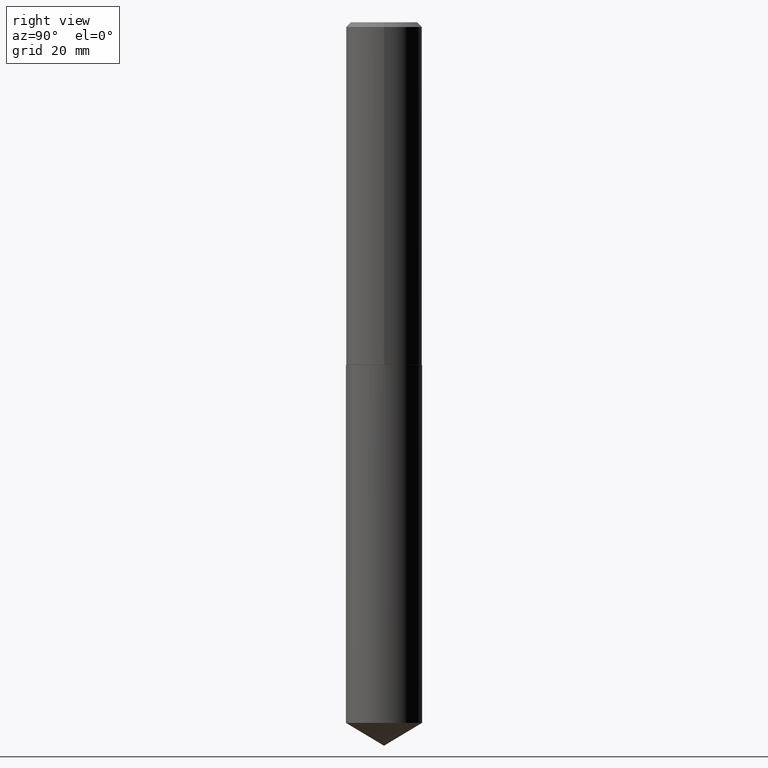
[diagram: clean part render]
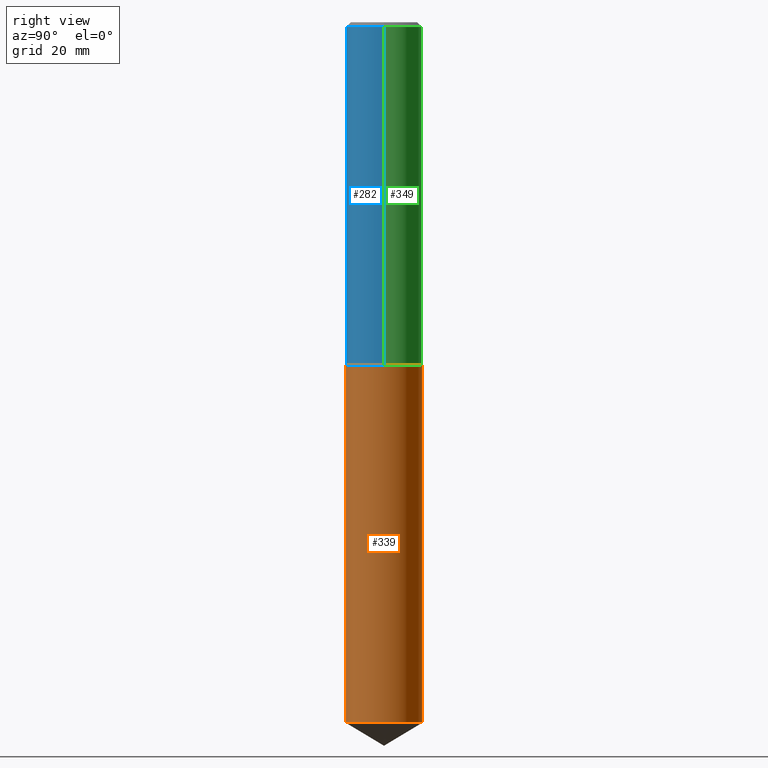
[diagram: same view with three faces highlighted in distinct colors, each labeled with its STEP entity id]
A machine part, right view with three faces highlighted in distinct colors.
Their STEP definitions:

[orange] entity #339 — the highlighted cylindrical surface (partial cylindrical patch) has radius 6.35 mm, axis along (-0, 0, 1).
#9 = ORIENTED_EDGE ( 'NONE', *, *, #237, .F. ) ;
#17 = FACE_OUTER_BOUND ( 'NONE', #108, .T. ) ;
#18 = VERTEX_POINT ( 'NONE', #36 ) ;
#21 = CYLINDRICAL_SURFACE ( 'NONE', #245, 0.2500000000000000000 ) ;
#33 = DIRECTION ( 'NONE',  ( -2.445526819537206284E-29, 3.491398260421066944E-15, 1.000000000000000000 ) ) ;
#36 = CARTESIAN_POINT ( 'NONE',  ( -1.745740669421511457E-15, -0.2500000000000078271, -2.249999999999999112 ) ) ;
#41 = DIRECTION ( 'NONE',  ( -2.445526819537206284E-29, 3.491398260421066944E-15, 1.000000000000000000 ) ) ;
#51 = VERTEX_POINT ( 'NONE', #124 ) ;
#61 = CARTESIAN_POINT ( 'NONE',  ( 5.502304813916556222E-29, -7.855833012397076871E-15, -2.249999999999999556 ) ) ;
#68 = DIRECTION ( 'NONE',  ( -6.982962677686265922E-15, -1.000000000000000000, 3.278217592397115862E-15 ) ) ;
#69 = ORIENTED_EDGE ( 'NONE', *, *, #178, .T. ) ;
#74 = DIRECTION ( 'NONE',  ( -6.982962677686265922E-15, -1.000000000000000000, 4.370956789862821150E-15 ) ) ;
#81 = EDGE_CURVE ( 'NONE', #225, #51, #146, .T. ) ;
#87 = DIRECTION ( 'NONE',  ( -2.445526819537206284E-29, 3.491398260421066944E-15, 1.000000000000000000 ) ) ;
#91 = CARTESIAN_POINT ( 'NONE',  ( 1.776356839400305291E-15, 0.2499999999999921452, -2.250000000000000444 ) ) ;
#92 = CARTESIAN_POINT ( 'NONE',  ( 1.776356839400362877E-15, 0.2499999999999921452, -2.250000000000000444 ) ) ;
#97 = CIRCLE ( 'NONE', #148, 0.2500000000000000000 ) ;
#104 = DIRECTION ( 'NONE',  ( -2.445526819537206284E-29, 3.491398260421066944E-15, 1.000000000000000000 ) ) ;
#108 = EDGE_LOOP ( 'NONE', ( #241, #69, #233, #9 ) ) ;
#120 = LINE ( 'NONE', #160, #199 ) ;
#124 = CARTESIAN_POINT ( 'NONE',  ( 1.776356839400362483E-15, 0.2499999999999839018, -4.599784845243110709 ) ) ;
#146 = CIRCLE ( 'NONE', #257, 0.2500000000000000000 ) ;
#148 = AXIS2_PLACEMENT_3D ( 'NONE', #61, #87, #388 ) ;
#159 = VERTEX_POINT ( 'NONE', #92 ) ;
#160 = CARTESIAN_POINT ( 'NONE',  ( -1.745740669421511457E-15, -0.2500000000000078271, -2.249999999999999112 ) ) ;
#173 = CARTESIAN_POINT ( 'NONE',  ( 5.502304813916556222E-29, -7.855833012397076871E-15, -2.249999999999999556 ) ) ;
#178 = EDGE_CURVE ( 'NONE', #51, #159, #213, .T. ) ;
#186 = VECTOR ( 'NONE', #238, 39.37007874015748143 ) ;
#199 = VECTOR ( 'NONE', #33, 39.37007874015748143 ) ;
#213 = LINE ( 'NONE', #91, #186 ) ;
#225 = VERTEX_POINT ( 'NONE', #267 ) ;
#233 = ORIENTED_EDGE ( 'NONE', *, *, #256, .F. ) ;
#237 = EDGE_CURVE ( 'NONE', #225, #18, #120, .T. ) ;
#238 = DIRECTION ( 'NONE',  ( -2.445526819537206284E-29, 3.491398260421066944E-15, 1.000000000000000000 ) ) ;
#241 = ORIENTED_EDGE ( 'NONE', *, *, #81, .T. ) ;
#245 = AXIS2_PLACEMENT_3D ( 'NONE', #173, #41, #68 ) ;
#256 = EDGE_CURVE ( 'NONE', #18, #159, #97, .T. ) ;
#257 = AXIS2_PLACEMENT_3D ( 'NONE', #294, #104, #74 ) ;
#267 = CARTESIAN_POINT ( 'NONE',  ( -1.745740669421453673E-15, -0.2500000000000159872, -4.599784845243108933 ) ) ;
#294 = CARTESIAN_POINT ( 'NONE',  ( 1.124876667310066739E-28, -1.605986773344265841E-14, -4.599784845243109821 ) ) ;
#339 = ADVANCED_FACE ( 'NONE', ( #17 ), #21, .T. ) ;
#388 = DIRECTION ( 'NONE',  ( -6.982962677686265922E-15, -1.000000000000000000, 3.278217592397115862E-15 ) ) ;

[blue] entity #282 — the highlighted cylindrical surface (partial cylindrical patch) has radius 6.35 mm, axis along (-0, 0, 1).
#4 = LINE ( 'NONE', #264, #312 ) ;
#45 = VERTEX_POINT ( 'NONE', #389 ) ;
#52 = EDGE_CURVE ( 'NONE', #144, #45, #240, .T. ) ;
#59 = DIRECTION ( 'NONE',  ( 1.000000000000000000, -6.982962677686266711E-15, 0.000000000000000000 ) ) ;
#62 = DIRECTION ( 'NONE',  ( -2.445468806185136597E-29, 3.491481338843145583E-15, 1.000000000000000000 ) ) ;
#64 = CYLINDRICAL_SURFACE ( 'NONE', #203, 0.2500000000000001110 ) ;
#77 = EDGE_CURVE ( 'NONE', #144, #82, #216, .T. ) ;
#82 = VERTEX_POINT ( 'NONE', #138 ) ;
#93 = DIRECTION ( 'NONE',  ( -2.445468806185136877E-29, 3.491481338843145188E-15, 1.000000000000000000 ) ) ;
#106 = CARTESIAN_POINT ( 'NONE',  ( 0.2500000000000000000, -1.854849461260415778E-15, -0.03125000000000021511 ) ) ;
#119 = ORIENTED_EDGE ( 'NONE', *, *, #215, .T. ) ;
#138 = CARTESIAN_POINT ( 'NONE',  ( 0.2500000000000002776, -9.599827941149224411E-15, -2.249499999999999833 ) ) ;
#144 = VERTEX_POINT ( 'NONE', #217 ) ;
#151 = CARTESIAN_POINT ( 'NONE',  ( 7.642090019328604414E-31, -1.091087918388490513E-16, -0.03125000000000021511 ) ) ;
#153 = VECTOR ( 'NONE', #93, 39.37007874015748143 ) ;
#154 = EDGE_CURVE ( 'NONE', #45, #318, #244, .T. ) ;
#179 = ORIENTED_EDGE ( 'NONE', *, *, #77, .T. ) ;
#182 = DIRECTION ( 'NONE',  ( 1.000000000000000000, -6.982962677686266711E-15, 0.000000000000000000 ) ) ;
#183 = DIRECTION ( 'NONE',  ( -2.445468806185136597E-29, 3.491481338843145583E-15, 1.000000000000000000 ) ) ;
#185 = CARTESIAN_POINT ( 'NONE',  ( 5.501082079513464541E-29, -7.854087271727656156E-15, -2.249499999999999833 ) ) ;
#193 = AXIS2_PLACEMENT_3D ( 'NONE', #185, #242, #182 ) ;
#194 = ORIENTED_EDGE ( 'NONE', *, *, #52, .F. ) ;
#203 = AXIS2_PLACEMENT_3D ( 'NONE', #350, #183, #362 ) ;
#215 = EDGE_CURVE ( 'NONE', #82, #318, #4, .T. ) ;
#216 = CIRCLE ( 'NONE', #193, 0.2500000000000002776 ) ;
#217 = CARTESIAN_POINT ( 'NONE',  ( -0.2500000000000002776, -6.077730432327403325E-15, -2.249499999999999833 ) ) ;
#240 = LINE ( 'NONE', #357, #153 ) ;
#242 = DIRECTION ( 'NONE',  ( -2.445468806185136597E-29, 3.491481338843145583E-15, 1.000000000000000000 ) ) ;
#244 = CIRCLE ( 'NONE', #262, 0.2500000000000000000 ) ;
#262 = AXIS2_PLACEMENT_3D ( 'NONE', #151, #62, #59 ) ;
#264 = CARTESIAN_POINT ( 'NONE',  ( 0.2500000000000001110, -1.745740669421567664E-15, 1.219044193948984649E-29 ) ) ;
#274 = DIRECTION ( 'NONE',  ( -2.445468806185136877E-29, 3.491481338843145188E-15, 1.000000000000000000 ) ) ;
#282 = ADVANCED_FACE ( 'NONE', ( #328 ), #64, .T. ) ;
#312 = VECTOR ( 'NONE', #274, 39.37007874015748143 ) ;
#318 = VERTEX_POINT ( 'NONE', #106 ) ;
#328 = FACE_OUTER_BOUND ( 'NONE', #377, .T. ) ;
#340 = ORIENTED_EDGE ( 'NONE', *, *, #154, .F. ) ;
#350 = CARTESIAN_POINT ( 'NONE',  ( 0.000000000000000000, 0.000000000000000000, 0.000000000000000000 ) ) ;
#357 = CARTESIAN_POINT ( 'NONE',  ( -0.2500000000000001110, 1.776356839400251254E-15, -1.229733772563727146E-29 ) ) ;
#362 = DIRECTION ( 'NONE',  ( 1.000000000000000000, -6.982962677686267499E-15, 4.876176775795936353E-29 ) ) ;
#377 = EDGE_LOOP ( 'NONE', ( #194, #179, #119, #340 ) ) ;
#389 = CARTESIAN_POINT ( 'NONE',  ( -0.2500000000000000000, -2.205241192383000191E-15, -0.03125000000000021511 ) ) ;

[green] entity #349 — the highlighted cylindrical surface (partial cylindrical patch) has radius 6.35 mm, axis along (-0, 0, 1).
#4 = LINE ( 'NONE', #264, #312 ) ;
#16 = DIRECTION ( 'NONE',  ( -2.445468806185136597E-29, 3.491481338843145583E-15, 1.000000000000000000 ) ) ;
#45 = VERTEX_POINT ( 'NONE', #389 ) ;
#49 = AXIS2_PLACEMENT_3D ( 'NONE', #308, #16, #67 ) ;
#52 = EDGE_CURVE ( 'NONE', #144, #45, #240, .T. ) ;
#67 = DIRECTION ( 'NONE',  ( 1.000000000000000000, -6.982962677686266711E-15, 0.000000000000000000 ) ) ;
#82 = VERTEX_POINT ( 'NONE', #138 ) ;
#93 = DIRECTION ( 'NONE',  ( -2.445468806185136877E-29, 3.491481338843145188E-15, 1.000000000000000000 ) ) ;
#106 = CARTESIAN_POINT ( 'NONE',  ( 0.2500000000000000000, -1.854849461260415778E-15, -0.03125000000000021511 ) ) ;
#112 = DIRECTION ( 'NONE',  ( 1.000000000000000000, -6.982962677686267499E-15, 4.876176775795936353E-29 ) ) ;
#118 = EDGE_CURVE ( 'NONE', #82, #144, #140, .T. ) ;
#128 = CIRCLE ( 'NONE', #384, 0.2500000000000000000 ) ;
#138 = CARTESIAN_POINT ( 'NONE',  ( 0.2500000000000002776, -9.599827941149224411E-15, -2.249499999999999833 ) ) ;
#140 = CIRCLE ( 'NONE', #49, 0.2500000000000002776 ) ;
#141 = CYLINDRICAL_SURFACE ( 'NONE', #286, 0.2500000000000001110 ) ;
#144 = VERTEX_POINT ( 'NONE', #217 ) ;
#153 = VECTOR ( 'NONE', #93, 39.37007874015748143 ) ;
#168 = CARTESIAN_POINT ( 'NONE',  ( 7.642090019328604414E-31, -1.091087918388490513E-16, -0.03125000000000021511 ) ) ;
#209 = ORIENTED_EDGE ( 'NONE', *, *, #118, .T. ) ;
#215 = EDGE_CURVE ( 'NONE', #82, #318, #4, .T. ) ;
#217 = CARTESIAN_POINT ( 'NONE',  ( -0.2500000000000002776, -6.077730432327403325E-15, -2.249499999999999833 ) ) ;
#222 = FACE_OUTER_BOUND ( 'NONE', #381, .T. ) ;
#240 = LINE ( 'NONE', #357, #153 ) ;
#254 = CARTESIAN_POINT ( 'NONE',  ( 0.000000000000000000, 0.000000000000000000, 0.000000000000000000 ) ) ;
#258 = ORIENTED_EDGE ( 'NONE', *, *, #314, .F. ) ;
#264 = CARTESIAN_POINT ( 'NONE',  ( 0.2500000000000001110, -1.745740669421567664E-15, 1.219044193948984649E-29 ) ) ;
#272 = ORIENTED_EDGE ( 'NONE', *, *, #52, .T. ) ;
#274 = DIRECTION ( 'NONE',  ( -2.445468806185136877E-29, 3.491481338843145188E-15, 1.000000000000000000 ) ) ;
#286 = AXIS2_PLACEMENT_3D ( 'NONE', #254, #376, #112 ) ;
#307 = ORIENTED_EDGE ( 'NONE', *, *, #215, .F. ) ;
#308 = CARTESIAN_POINT ( 'NONE',  ( 5.501082079513464541E-29, -7.854087271727656156E-15, -2.249499999999999833 ) ) ;
#309 = DIRECTION ( 'NONE',  ( -2.445468806185136597E-29, 3.491481338843145583E-15, 1.000000000000000000 ) ) ;
#312 = VECTOR ( 'NONE', #274, 39.37007874015748143 ) ;
#314 = EDGE_CURVE ( 'NONE', #318, #45, #128, .T. ) ;
#318 = VERTEX_POINT ( 'NONE', #106 ) ;
#349 = ADVANCED_FACE ( 'NONE', ( #222 ), #141, .T. ) ;
#357 = CARTESIAN_POINT ( 'NONE',  ( -0.2500000000000001110, 1.776356839400251254E-15, -1.229733772563727146E-29 ) ) ;
#371 = DIRECTION ( 'NONE',  ( 1.000000000000000000, -6.982962677686266711E-15, 0.000000000000000000 ) ) ;
#376 = DIRECTION ( 'NONE',  ( -2.445468806185136597E-29, 3.491481338843145583E-15, 1.000000000000000000 ) ) ;
#381 = EDGE_LOOP ( 'NONE', ( #209, #272, #258, #307 ) ) ;
#384 = AXIS2_PLACEMENT_3D ( 'NONE', #168, #309, #371 ) ;
#389 = CARTESIAN_POINT ( 'NONE',  ( -0.2500000000000000000, -2.205241192383000191E-15, -0.03125000000000021511 ) ) ;